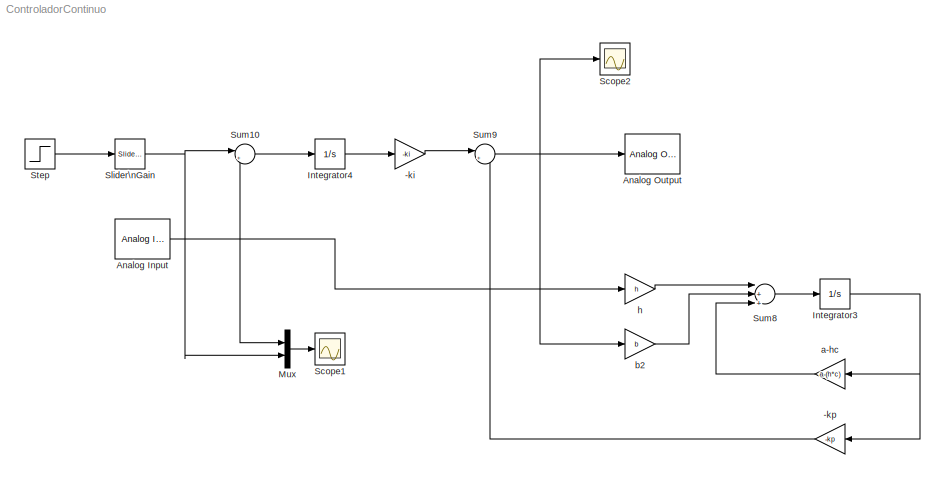
MODEL ControladorContinuo
KIND model
BLOCK [Gain] -ki
  Gain = -ki
  Multiplication = Matrix(K*u) (u vector)
  OutDataTypeStr = Inherit: Inherit via internal rule
  ParamDataTypeStr = Inherit: Inherit via internal rule
  SID = 53
  SaturateOnIntegerOverflow = off
BLOCK [Gain] -kp
  Gain = -kp
  Multiplication = Matrix(K*u) (u vector)
  OutDataTypeStr = Inherit: Inherit via internal rule
  ParamDataTypeStr = Inherit: Inherit via internal rule
  SID = 68
  SaturateOnIntegerOverflow = off
BLOCK [Reference] Analog Input  REF=rtwinlib/Analog Input
  AttributesFormatString = National Instruments\\nPCI-6221 [auto]
  Channels = 1
  DataType = 1
  DrvAddress = 4294967295
  DrvName = National_Instruments/PCI-6221
  DrvOptions = [1 0 0 0 0]
  MaxMissedTicks = 10
  Ports = [0, 1]
  RangeMode = 1
  SID = 2
  SampleTime = tm
  ShowMissedTicks = off
  SourceBlock = rtwinlib/Analog Input
  SourceType = RTWin Analog Input
  VoltRange = 2
  YieldWhenWaiting = off
BLOCK [Reference] Analog Output  REF=rtwinlib/Analog Output
  AttributesFormatString = National Instruments\\nPCI-6221 [auto]
  Channels = 1
  DrvAddress = 4294967295
  DrvName = National_Instruments/PCI-6221
  DrvOptions = [1 0 0 0 0]
  FinalValue = 5
  InitialValue = 0
  MaxMissedTicks = 10
  Ports = [1]
  RangeMode = 1
  SID = 1
  SampleTime = tm
  ShowMissedTicks = off
  SourceBlock = rtwinlib/Analog Output
  SourceType = RTWin Analog Output
  VoltRange = 1
  YieldWhenWaiting = off
BLOCK [Integrator] Integrator3
  Ports = [1, 1]
  SID = 55
BLOCK [Integrator] Integrator4
  Ports = [1, 1]
  SID = 56
BLOCK [Mux] Mux
  DisplayOption = bar
  Inputs = 2
  Ports = [2, 1]
  SID = 46
BLOCK [Scope] Scope1
  DataFormat = StructureWithTime
  Floating = off
  LimitDataPoints = off
  NumInputPorts = 1
  Ports = [1]
  SID = 3
  SampleTime = 0
  ShowLegends = off
  TimeRange = 100
  YMax = 5.02
  YMin = 4.85
  ZoomMode = yonly
BLOCK [Scope] Scope2
  DataFormat = StructureWithTime
  Floating = off
  LimitDataPoints = off
  NumInputPorts = 1
  Ports = [1]
  SID = 69
  SampleTime = 0
  SaveName = ScopeData1
  ShowLegends = off
  TimeRange = 100
  YMax = 6.8
  YMin = 5.85
  ZoomMode = yonly
BLOCK [Reference] Slider\nGain  REF=simulink/Math\nOperations/Slider\nGain
  Ports = [1, 1]
  SID = 52
  SourceBlock = simulink/Math\nOperations/Slider\nGain
  SourceType = Slider Gain
  gain = 5
  high = 5
  low = 0
BLOCK [Step] Step
  SID = 50
  Time = 0
BLOCK [Sum] Sum10
  IconShape = round
  InputSameDT = off
  Inputs = |+-
  OutDataTypeStr = Inherit: Inherit via internal rule
  Ports = [2, 1]
  SID = 29
  SaturateOnIntegerOverflow = off
BLOCK [Sum] Sum8
  InputSameDT = off
  Inputs = |+++
  OutDataTypeStr = Inherit: Inherit via internal rule
  Ports = [3, 1]
  SID = 31
  SaturateOnIntegerOverflow = off
BLOCK [Sum] Sum9
  IconShape = round
  InputSameDT = off
  Inputs = |++
  OutDataTypeStr = Inherit: Inherit via internal rule
  Ports = [2, 1]
  SID = 32
  SaturateOnIntegerOverflow = off
BLOCK [Gain] a-hc
  Gain = a-(h*c)
  Multiplication = Matrix(K*u) (u vector)
  OutDataTypeStr = Inherit: Inherit via internal rule
  ParamDataTypeStr = Inherit: Inherit via internal rule
  SID = 62
  SaturateOnIntegerOverflow = off
BLOCK [Gain] b2
  Gain = b
  Multiplication = Matrix(K*u) (u vector)
  OutDataTypeStr = Inherit: Inherit via internal rule
  ParamDataTypeStr = Inherit: Inherit via internal rule
  SID = 65
  SaturateOnIntegerOverflow = off
BLOCK [Gain] h
  Gain = h
  Multiplication = Matrix(K*u) (u vector)
  OutDataTypeStr = Inherit: Inherit via internal rule
  ParamDataTypeStr = Inherit: Inherit via internal rule
  SID = 67
  SaturateOnIntegerOverflow = off
LINE -ki:1 -> Sum9:1
LINE -kp:1 -> Sum9:2
NET Analog Input:1 -> Mux:1, Sum10:2, h:1
NET Integrator3:1 -> -kp:1, a-hc:1
LINE Integrator4:1 -> -ki:1
LINE Mux:1 -> Scope1:1
NET Slider\nGain:1 -> Mux:2, Sum10:1
LINE Step:1 -> Slider\nGain:1
LINE Sum10:1 -> Integrator4:1
LINE Sum8:1 -> Integrator3:1
NET Sum9:1 -> Analog Output:1, Scope2:1, b2:1
LINE a-hc:1 -> Sum8:3
LINE b2:1 -> Sum8:2
LINE h:1 -> Sum8:1
note: NET lines group one-source signal fan-out (src -> all destinations, sorted); 1:1 wires keep LINE
